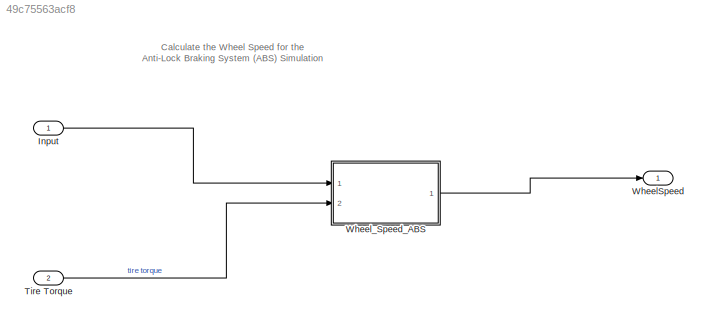
MODEL slx_49c75563acf8
KIND model
CONFIG AbsTol = 1e-6
CONFIG EnableMultiTasking = off
CONFIG FixedStep = auto
CONFIG MaxStep = .01
CONFIG MinStep = auto
CONFIG RelTol = 1e-3
CONFIG SampleTimeConstraint = Unconstrained
CONFIG SolverName = ode45
CONFIG StartTime = 0.0
CONFIG StopTime = 25
WORKSPACE source: mxarray member
WORKSPACE I = 5
WORKSPACE Kf = 1
WORKSPACE PBmax = 1500
WORKSPACE Rr = 1.25
WORKSPACE TB = 0.01
WORKSPACE v0 = 88
BLOCK [Inport] Input
  SampleTime = 0
BLOCK [Inport] Tire Torque
  Port = 2
BLOCK [Outport] WheelSpeed
  VectorParamsAs1DForOutWhenUnconnected = off
BLOCK [ModelReference] Wheel_Speed_ABS
  ModelNameDialog = Subsystem.slx
  ModelReferenceVersion = 1.69
  Ports = [2, 1]
ANNOTATION (root): Calculate the Wheel Speed for the Anti-Lock Braking System (ABS) Simulation
LINE Input:1 -> Wheel_Speed_ABS:1
LINE Tire Torque:1 -> Wheel_Speed_ABS:2
LINE Wheel_Speed_ABS:1 -> WheelSpeed:1
